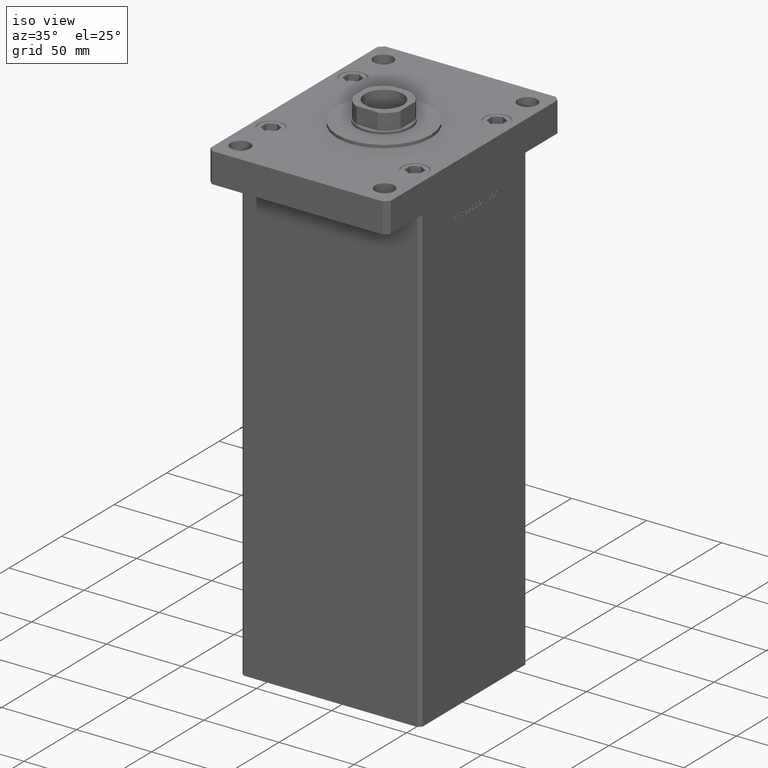
[diagram: clean part render]
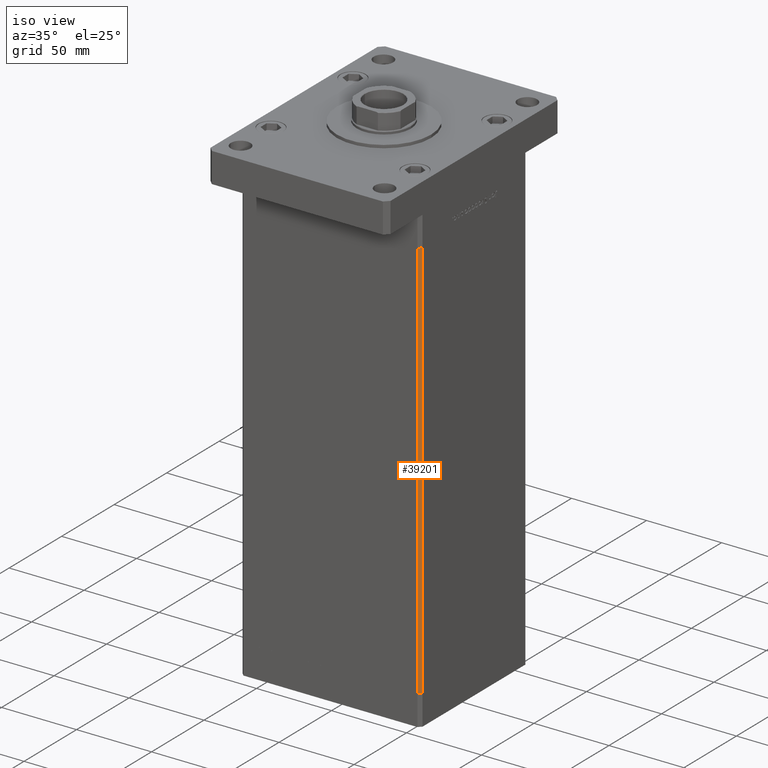
[diagram: same view with one face highlighted and labeled with its STEP entity id]
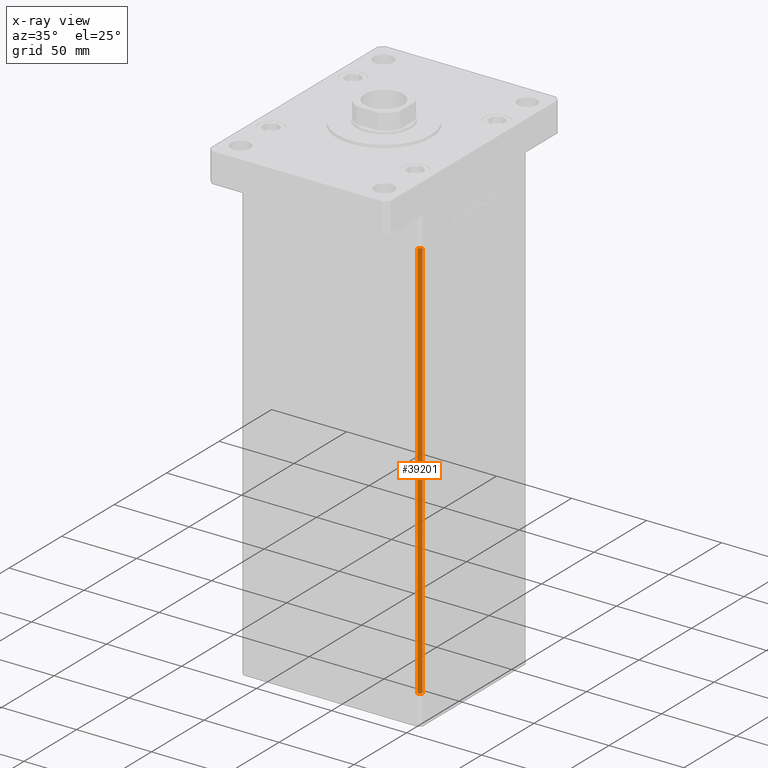
[diagram: x-ray of the same camera — body ghosted, the highlighted face saturated]
A machine part, iso view. The second image highlights one B-rep face of the part: STEP entity #39201.
The next image is the same camera in x-ray: the body ghosted, the highlighted face saturated — about 0% of this face is hidden behind the body in this view.
In plain terms, the highlighted planar face has unit normal (0.7071, -0.7071, 0).
Its self-contained STEP definition (entity closure, byte-faithful):
#549 = DIRECTION ( 'NONE',  ( -0.7071067811865474617, -0.7071067811865474617, 0.000000000000000000 ) ) ;
#4109 = LINE ( 'NONE', #16632, #29660 ) ;
#7129 = EDGE_CURVE ( 'NONE', #29817, #27574, #4109, .T. ) ;
#10303 = EDGE_CURVE ( 'NONE', #49136, #13158, #24544, .T. ) ;
#10626 = AXIS2_PLACEMENT_3D ( 'NONE', #46975, #42331, #21640 ) ;
#10779 = ORIENTED_EDGE ( 'NONE', *, *, #10303, .F. ) ;
#12298 = DIRECTION ( 'NONE',  ( -0.7071067811865474617, -0.7071067811865474617, 0.000000000000000000 ) ) ;
#12484 = VECTOR ( 'NONE', #13351, 1000.000000000000000 ) ;
#13158 = VERTEX_POINT ( 'NONE', #40665 ) ;
#13351 = DIRECTION ( 'NONE',  ( -0.000000000000000000, -0.000000000000000000, -1.000000000000000000 ) ) ;
#13735 = PLANE ( 'NONE',  #10626 ) ;
#16632 = CARTESIAN_POINT ( 'NONE',  ( 59.99999999999998579, -49.00000000000000000, 268.5000000000000000 ) ) ;
#17044 = VECTOR ( 'NONE', #33640, 1000.000000000000000 ) ;
#17309 = CARTESIAN_POINT ( 'NONE',  ( 57.99999999999997868, -51.00000000000000711, 268.5000000000000000 ) ) ;
#18509 = LINE ( 'NONE', #51737, #12484 ) ;
#20453 = EDGE_CURVE ( 'NONE', #27574, #13158, #46185, .T. ) ;
#21423 = CARTESIAN_POINT ( 'NONE',  ( 57.99999999999997868, -51.00000000000000711, 268.5000000000000000 ) ) ;
#21640 = DIRECTION ( 'NONE',  ( 0.7071067811865474617, 0.7071067811865474617, 0.000000000000000000 ) ) ;
#24544 = LINE ( 'NONE', #25067, #36713 ) ;
#24566 = CARTESIAN_POINT ( 'NONE',  ( 59.99999999999998579, -49.00000000000000000, 0.000000000000000000 ) ) ;
#25067 = CARTESIAN_POINT ( 'NONE',  ( 59.99999999999998579, -49.00000000000000000, 0.000000000000000000 ) ) ;
#27574 = VERTEX_POINT ( 'NONE', #21423 ) ;
#29660 = VECTOR ( 'NONE', #549, 1000.000000000000114 ) ;
#29817 = VERTEX_POINT ( 'NONE', #47818 ) ;
#30405 = ORIENTED_EDGE ( 'NONE', *, *, #44289, .F. ) ;
#32637 = ORIENTED_EDGE ( 'NONE', *, *, #7129, .T. ) ;
#33640 = DIRECTION ( 'NONE',  ( -0.000000000000000000, -0.000000000000000000, -1.000000000000000000 ) ) ;
#33886 = FACE_OUTER_BOUND ( 'NONE', #36781, .T. ) ;
#36713 = VECTOR ( 'NONE', #12298, 1000.000000000000114 ) ;
#36781 = EDGE_LOOP ( 'NONE', ( #10779, #30405, #32637, #53025 ) ) ;
#39201 = ADVANCED_FACE ( 'NONE', ( #33886 ), #13735, .T. ) ;
#40665 = CARTESIAN_POINT ( 'NONE',  ( 57.99999999999997868, -51.00000000000000711, 0.000000000000000000 ) ) ;
#42331 = DIRECTION ( 'NONE',  ( 0.7071067811865475727, -0.7071067811865475727, 0.000000000000000000 ) ) ;
#44289 = EDGE_CURVE ( 'NONE', #29817, #49136, #18509, .T. ) ;
#46185 = LINE ( 'NONE', #17309, #17044 ) ;
#46975 = CARTESIAN_POINT ( 'NONE',  ( 59.99999999999998579, -49.00000000000000000, 268.5000000000000000 ) ) ;
#47818 = CARTESIAN_POINT ( 'NONE',  ( 59.99999999999998579, -49.00000000000000000, 268.5000000000000000 ) ) ;
#49136 = VERTEX_POINT ( 'NONE', #24566 ) ;
#51737 = CARTESIAN_POINT ( 'NONE',  ( 59.99999999999998579, -49.00000000000000000, 268.5000000000000000 ) ) ;
#53025 = ORIENTED_EDGE ( 'NONE', *, *, #20453, .T. ) ;